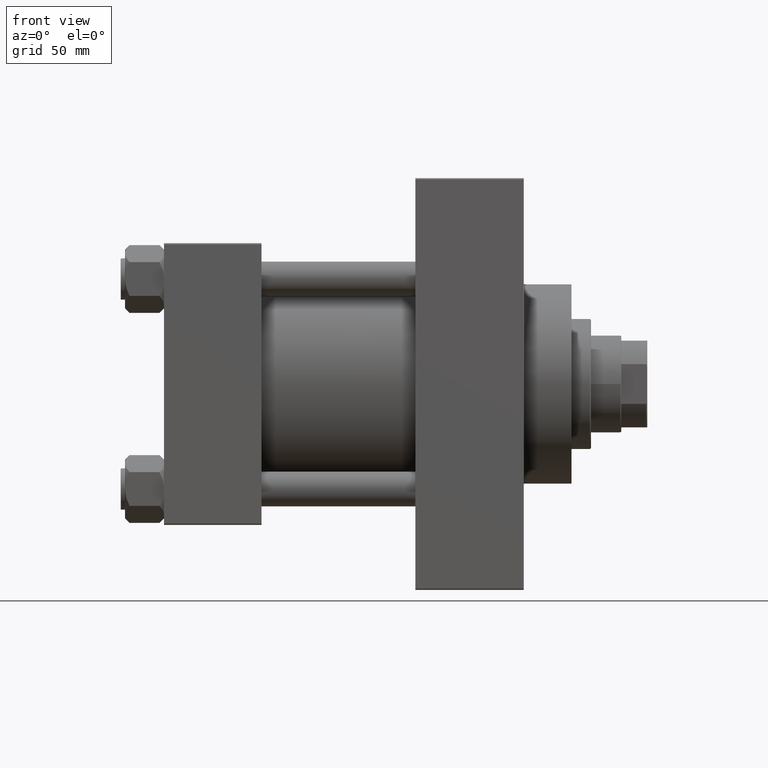
[diagram: clean part render]
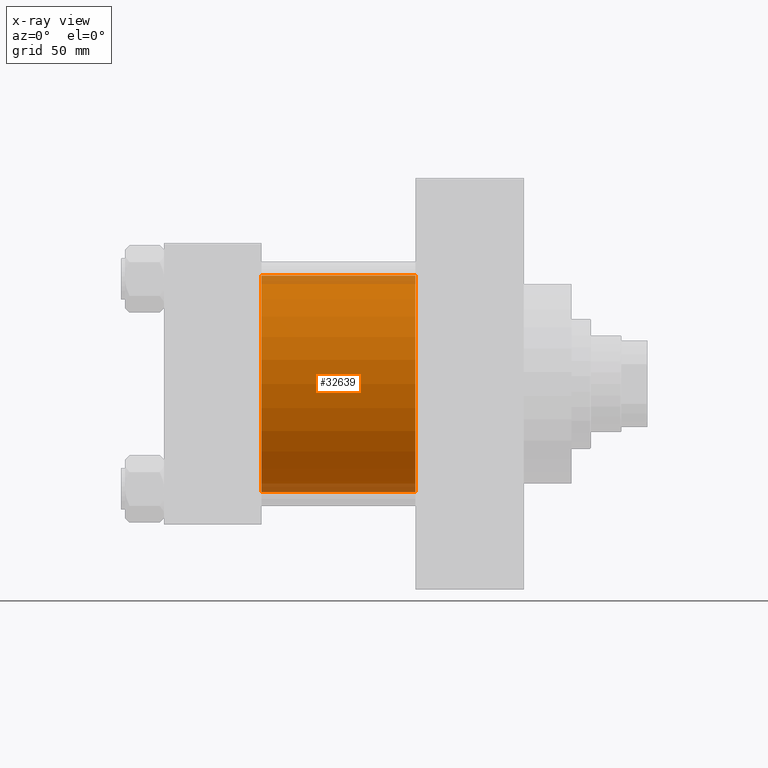
[diagram: x-ray — body ghosted, one internal face saturated and labeled with its STEP entity id]
A machine part, front view, then the same camera in x-ray: the body is ghosted and one INTERNAL B-rep face — a face not visible from any outside direction — is saturated and labeled: STEP entity #32639.
In plain terms, the highlighted cylindrical surface (partial cylindrical patch) has radius 50 mm, axis along (-1, -0, -0).
Its self-contained STEP definition (entity closure, byte-faithful):
#719 = CARTESIAN_POINT ( 'NONE',  ( 45.00000000000000000, -2.602085213965210642E-15, 0.000000000000000000 ) ) ;
#2536 = ORIENTED_EDGE ( 'NONE', *, *, #14148, .T. ) ;
#4285 = EDGE_CURVE ( 'NONE', #37337, #31019, #8771, .T. ) ;
#5516 = CARTESIAN_POINT ( 'NONE',  ( 115.9999999999999858, -2.602085213965210642E-15, 0.000000000000000000 ) ) ;
#6945 = FACE_OUTER_BOUND ( 'NONE', #46937, .T. ) ;
#7115 = VERTEX_POINT ( 'NONE', #35190 ) ;
#8771 = CIRCLE ( 'NONE', #24049, 50.00000000000000000 ) ;
#10574 = VERTEX_POINT ( 'NONE', #14823 ) ;
#11213 = CARTESIAN_POINT ( 'NONE',  ( 45.00000000000000000, -2.602085213965210642E-15, 50.00000000000000000 ) ) ;
#13155 = AXIS2_PLACEMENT_3D ( 'NONE', #30118, #34391, #46221 ) ;
#13327 = VECTOR ( 'NONE', #30643, 1000.000000000000000 ) ;
#13850 = CIRCLE ( 'NONE', #17830, 50.00000000000000000 ) ;
#14148 = EDGE_CURVE ( 'NONE', #7115, #10574, #13850, .T. ) ;
#14823 = CARTESIAN_POINT ( 'NONE',  ( 115.9999999999999858, 3.521148781771555838E-15, -50.00000000000000000 ) ) ;
#15032 = EDGE_CURVE ( 'NONE', #10574, #31019, #24701, .T. ) ;
#17830 = AXIS2_PLACEMENT_3D ( 'NONE', #5516, #24905, #37229 ) ;
#18289 = CARTESIAN_POINT ( 'NONE',  ( 115.9999999999999858, -2.602085213965210642E-15, 50.00000000000000000 ) ) ;
#20325 = DIRECTION ( 'NONE',  ( 1.000000000000000000, 0.000000000000000000, 0.000000000000000000 ) ) ;
#21418 = DIRECTION ( 'NONE',  ( -1.000000000000000000, -0.000000000000000000, -0.000000000000000000 ) ) ;
#22586 = LINE ( 'NONE', #18289, #13327 ) ;
#24049 = AXIS2_PLACEMENT_3D ( 'NONE', #719, #20325, #47276 ) ;
#24446 = CARTESIAN_POINT ( 'NONE',  ( 45.00000000000000000, 3.521148781771555838E-15, -50.00000000000000000 ) ) ;
#24701 = LINE ( 'NONE', #28488, #49282 ) ;
#24905 = DIRECTION ( 'NONE',  ( 1.000000000000000000, 0.000000000000000000, 0.000000000000000000 ) ) ;
#28488 = CARTESIAN_POINT ( 'NONE',  ( 115.9999999999999858, 3.521148781771555838E-15, -50.00000000000000000 ) ) ;
#28654 = ORIENTED_EDGE ( 'NONE', *, *, #15032, .T. ) ;
#30118 = CARTESIAN_POINT ( 'NONE',  ( 115.9999999999999858, -2.602085213965210642E-15, 0.000000000000000000 ) ) ;
#30437 = ORIENTED_EDGE ( 'NONE', *, *, #4285, .F. ) ;
#30643 = DIRECTION ( 'NONE',  ( -1.000000000000000000, -0.000000000000000000, -0.000000000000000000 ) ) ;
#31019 = VERTEX_POINT ( 'NONE', #24446 ) ;
#32639 = ADVANCED_FACE ( 'NONE', ( #6945 ), #38414, .F. ) ;
#34391 = DIRECTION ( 'NONE',  ( -1.000000000000000000, -0.000000000000000000, -0.000000000000000000 ) ) ;
#35190 = CARTESIAN_POINT ( 'NONE',  ( 115.9999999999999858, -2.602085213965210642E-15, 50.00000000000000000 ) ) ;
#37229 = DIRECTION ( 'NONE',  ( 0.000000000000000000, 0.000000000000000000, -1.000000000000000000 ) ) ;
#37337 = VERTEX_POINT ( 'NONE', #11213 ) ;
#38414 = CYLINDRICAL_SURFACE ( 'NONE', #13155, 50.00000000000000000 ) ;
#40295 = ORIENTED_EDGE ( 'NONE', *, *, #41874, .F. ) ;
#41874 = EDGE_CURVE ( 'NONE', #7115, #37337, #22586, .T. ) ;
#46221 = DIRECTION ( 'NONE',  ( 0.000000000000000000, 0.000000000000000000, 1.000000000000000000 ) ) ;
#46937 = EDGE_LOOP ( 'NONE', ( #2536, #28654, #30437, #40295 ) ) ;
#47276 = DIRECTION ( 'NONE',  ( 0.000000000000000000, 0.000000000000000000, -1.000000000000000000 ) ) ;
#49282 = VECTOR ( 'NONE', #21418, 1000.000000000000000 ) ;